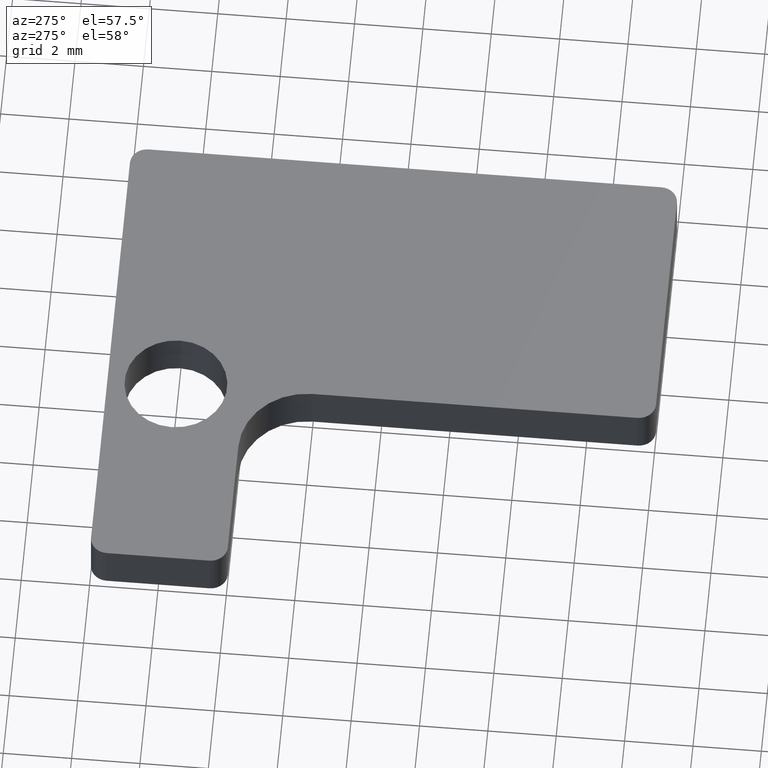
[diagram: clean part render]
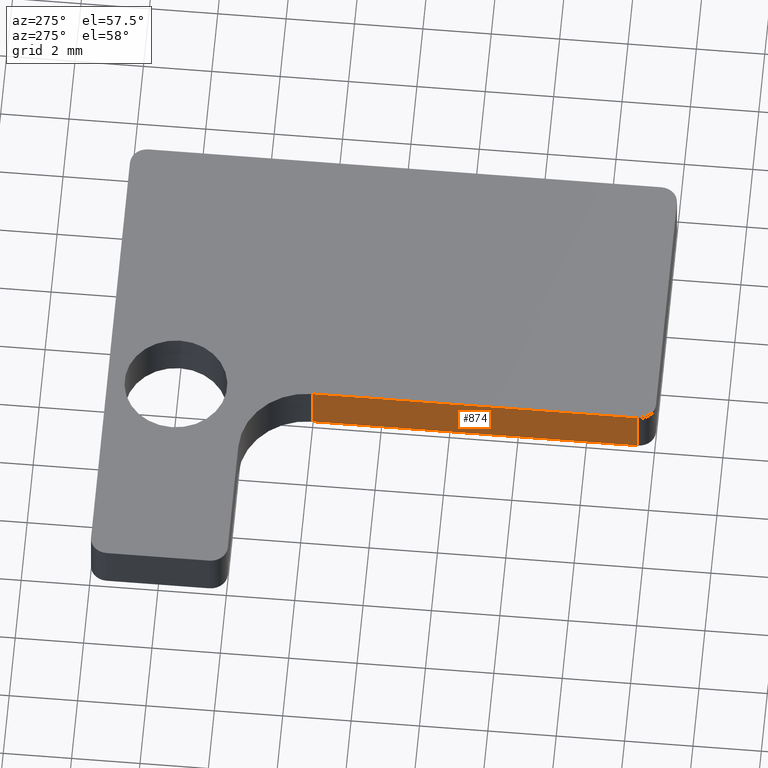
[diagram: same view with one face highlighted and labeled with its STEP entity id]
A machine part, auxiliary view. The second image highlights one B-rep face of the part: STEP entity #874.
In plain terms, the highlighted planar face has unit normal (-1, 0, 0).
Its self-contained STEP definition (entity closure, byte-faithful):
#44 = PLANE('',#45);
#45 = AXIS2_PLACEMENT_3D('',#46,#47,#48);
#46 = CARTESIAN_POINT('',(2.2,9.2,0.));
#47 = DIRECTION('',(0.,0.,1.));
#48 = DIRECTION('',(1.,0.,0.));
#72 = CYLINDRICAL_SURFACE('',#73,2.);
#73 = AXIS2_PLACEMENT_3D('',#74,#75,#76);
#74 = CARTESIAN_POINT('',(-2.,10.,0.));
#75 = DIRECTION('',(0.,0.,1.));
#76 = DIRECTION('',(0.,1.,0.));
#100 = PLANE('',#101);
#101 = AXIS2_PLACEMENT_3D('',#102,#103,#104);
#102 = CARTESIAN_POINT('',(2.2,9.2,1.5));
#103 = DIRECTION('',(0.,0.,1.));
#104 = DIRECTION('',(1.,0.,0.));
#143 = VERTEX_POINT('',#144);
#144 = CARTESIAN_POINT('',(4.440892098501E-16,10.,0.));
#170 = EDGE_CURVE('',#171,#143,#173,.T.);
#171 = VERTEX_POINT('',#172);
#172 = CARTESIAN_POINT('',(-1.110223024625E-16,0.5,0.));
#173 = SURFACE_CURVE('',#174,(#178,#185),.PCURVE_S1.);
#174 = LINE('',#175,#176);
#175 = CARTESIAN_POINT('',(0.,0.,0.));
#176 = VECTOR('',#177,1.);
#177 = DIRECTION('',(0.,1.,0.));
#178 = PCURVE('',#44,#179);
#179 = DEFINITIONAL_REPRESENTATION('',(#180),#184);
#180 = LINE('',#181,#182);
#181 = CARTESIAN_POINT('',(-2.2,-9.2));
#182 = VECTOR('',#183,1.);
#183 = DIRECTION('',(0.,1.));
#184 = ( GEOMETRIC_REPRESENTATION_CONTEXT(2) 
PARAMETRIC_REPRESENTATION_CONTEXT() REPRESENTATION_CONTEXT('2D SPACE',''
  ) );
#185 = PCURVE('',#186,#191);
#186 = PLANE('',#187);
#187 = AXIS2_PLACEMENT_3D('',#188,#189,#190);
#188 = CARTESIAN_POINT('',(0.,0.,0.));
#189 = DIRECTION('',(-1.,0.,0.));
#190 = DIRECTION('',(0.,1.,0.));
#191 = DEFINITIONAL_REPRESENTATION('',(#192),#196);
#192 = LINE('',#193,#194);
#193 = CARTESIAN_POINT('',(0.,0.));
#194 = VECTOR('',#195,1.);
#195 = DIRECTION('',(1.,0.));
#196 = ( GEOMETRIC_REPRESENTATION_CONTEXT(2) 
PARAMETRIC_REPRESENTATION_CONTEXT() REPRESENTATION_CONTEXT('2D SPACE',''
  ) );
#215 = CYLINDRICAL_SURFACE('',#216,0.5);
#216 = AXIS2_PLACEMENT_3D('',#217,#218,#219);
#217 = CARTESIAN_POINT('',(0.5,0.5,0.));
#218 = DIRECTION('',(0.,0.,1.));
#219 = DIRECTION('',(-1.,0.,0.));
#549 = EDGE_CURVE('',#143,#550,#552,.T.);
#550 = VERTEX_POINT('',#551);
#551 = CARTESIAN_POINT('',(4.440892098501E-16,10.,1.5));
#552 = SURFACE_CURVE('',#553,(#557,#564),.PCURVE_S1.);
#553 = LINE('',#554,#555);
#554 = CARTESIAN_POINT('',(4.440892098501E-16,10.,0.));
#555 = VECTOR('',#556,1.);
#556 = DIRECTION('',(0.,0.,1.));
#557 = PCURVE('',#72,#558);
#558 = DEFINITIONAL_REPRESENTATION('',(#559),#563);
#559 = LINE('',#560,#561);
#560 = CARTESIAN_POINT('',(-1.570796326795,0.));
#561 = VECTOR('',#562,1.);
#562 = DIRECTION('',(-0.,1.));
#563 = ( GEOMETRIC_REPRESENTATION_CONTEXT(2) 
PARAMETRIC_REPRESENTATION_CONTEXT() REPRESENTATION_CONTEXT('2D SPACE',''
  ) );
#564 = PCURVE('',#186,#565);
#565 = DEFINITIONAL_REPRESENTATION('',(#566),#570);
#566 = LINE('',#567,#568);
#567 = CARTESIAN_POINT('',(10.,0.));
#568 = VECTOR('',#569,1.);
#569 = DIRECTION('',(0.,-1.));
#570 = ( GEOMETRIC_REPRESENTATION_CONTEXT(2) 
PARAMETRIC_REPRESENTATION_CONTEXT() REPRESENTATION_CONTEXT('2D SPACE',''
  ) );
#604 = EDGE_CURVE('',#605,#550,#607,.T.);
#605 = VERTEX_POINT('',#606);
#606 = CARTESIAN_POINT('',(-1.110223024625E-16,0.5,1.5));
#607 = SURFACE_CURVE('',#608,(#612,#619),.PCURVE_S1.);
#608 = LINE('',#609,#610);
#609 = CARTESIAN_POINT('',(0.,0.,1.5));
#610 = VECTOR('',#611,1.);
#611 = DIRECTION('',(0.,1.,0.));
#612 = PCURVE('',#100,#613);
#613 = DEFINITIONAL_REPRESENTATION('',(#614),#618);
#614 = LINE('',#615,#616);
#615 = CARTESIAN_POINT('',(-2.2,-9.2));
#616 = VECTOR('',#617,1.);
#617 = DIRECTION('',(0.,1.));
#618 = ( GEOMETRIC_REPRESENTATION_CONTEXT(2) 
PARAMETRIC_REPRESENTATION_CONTEXT() REPRESENTATION_CONTEXT('2D SPACE',''
  ) );
#619 = PCURVE('',#186,#620);
#620 = DEFINITIONAL_REPRESENTATION('',(#621),#625);
#621 = LINE('',#622,#623);
#622 = CARTESIAN_POINT('',(0.,-1.5));
#623 = VECTOR('',#624,1.);
#624 = DIRECTION('',(1.,0.));
#625 = ( GEOMETRIC_REPRESENTATION_CONTEXT(2) 
PARAMETRIC_REPRESENTATION_CONTEXT() REPRESENTATION_CONTEXT('2D SPACE',''
  ) );
#874 = ADVANCED_FACE('',(#875),#186,.T.);
#875 = FACE_BOUND('',#876,.T.);
#876 = EDGE_LOOP('',(#877,#878,#899,#900));
#877 = ORIENTED_EDGE('',*,*,#170,.F.);
#878 = ORIENTED_EDGE('',*,*,#879,.T.);
#879 = EDGE_CURVE('',#171,#605,#880,.T.);
#880 = SURFACE_CURVE('',#881,(#885,#892),.PCURVE_S1.);
#881 = LINE('',#882,#883);
#882 = CARTESIAN_POINT('',(-1.110223024625E-16,0.5,0.));
#883 = VECTOR('',#884,1.);
#884 = DIRECTION('',(0.,0.,1.));
#885 = PCURVE('',#186,#886);
#886 = DEFINITIONAL_REPRESENTATION('',(#887),#891);
#887 = LINE('',#888,#889);
#888 = CARTESIAN_POINT('',(0.5,0.));
#889 = VECTOR('',#890,1.);
#890 = DIRECTION('',(0.,-1.));
#891 = ( GEOMETRIC_REPRESENTATION_CONTEXT(2) 
PARAMETRIC_REPRESENTATION_CONTEXT() REPRESENTATION_CONTEXT('2D SPACE',''
  ) );
#892 = PCURVE('',#215,#893);
#893 = DEFINITIONAL_REPRESENTATION('',(#894),#898);
#894 = LINE('',#895,#896);
#895 = CARTESIAN_POINT('',(0.,0.));
#896 = VECTOR('',#897,1.);
#897 = DIRECTION('',(0.,1.));
#898 = ( GEOMETRIC_REPRESENTATION_CONTEXT(2) 
PARAMETRIC_REPRESENTATION_CONTEXT() REPRESENTATION_CONTEXT('2D SPACE',''
  ) );
#899 = ORIENTED_EDGE('',*,*,#604,.T.);
#900 = ORIENTED_EDGE('',*,*,#549,.F.);